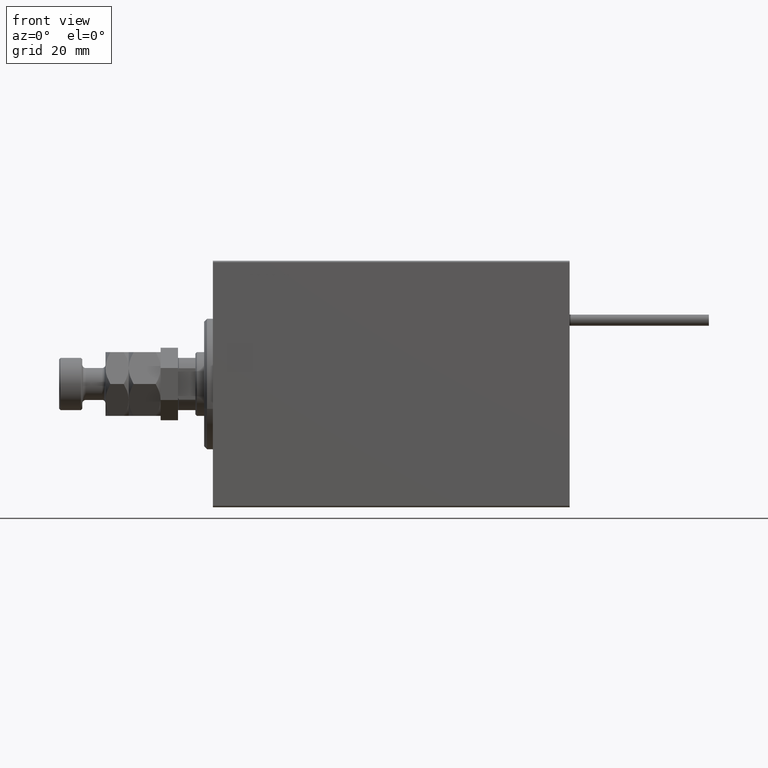
[diagram: clean part render]
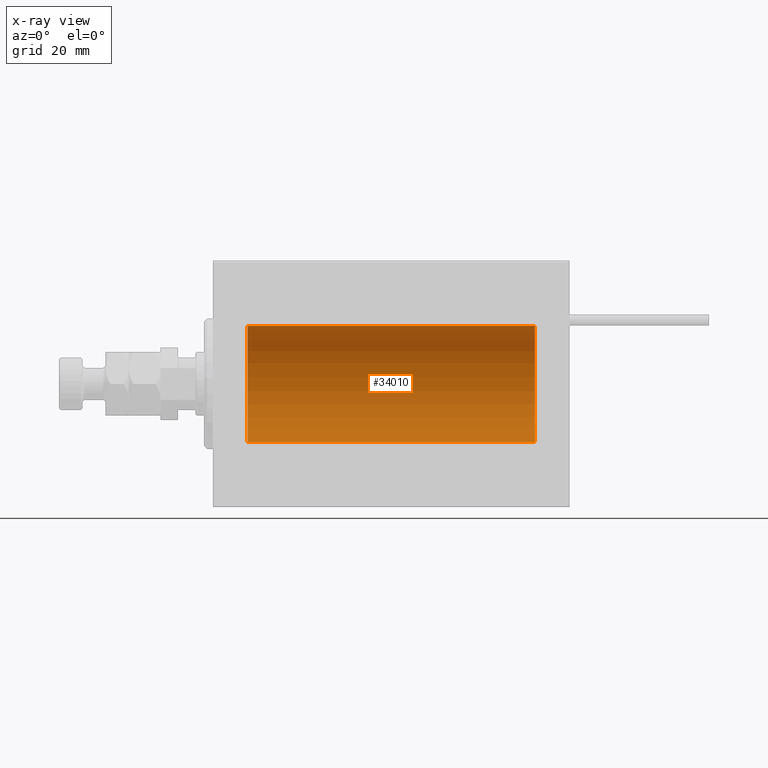
[diagram: x-ray — body ghosted, one internal face saturated and labeled with its STEP entity id]
A machine part, front view, then the same camera in x-ray: the body is ghosted and one INTERNAL B-rep face — a face not visible from any outside direction — is saturated and labeled: STEP entity #34010.
In plain terms, the highlighted cylindrical surface (partial cylindrical patch) has radius 20 mm, axis along (-1, -0, -0).
Its self-contained STEP definition (entity closure, byte-faithful):
#1894 = DIRECTION ( 'NONE',  ( 0.000000000000000000, 0.000000000000000000, 1.000000000000000000 ) ) ;
#2960 = CARTESIAN_POINT ( 'NONE',  ( 111.0000000000000000, 2.449293598294706513E-15, -20.00000000000000000 ) ) ;
#6090 = VECTOR ( 'NONE', #19934, 1000.000000000000000 ) ;
#6785 = VERTEX_POINT ( 'NONE', #29605 ) ;
#10708 = ORIENTED_EDGE ( 'NONE', *, *, #44385, .F. ) ;
#12265 = EDGE_LOOP ( 'NONE', ( #10708, #20958, #28936, #16225 ) ) ;
#14206 = DIRECTION ( 'NONE',  ( -1.000000000000000000, 0.000000000000000000, 0.000000000000000000 ) ) ;
#14876 = AXIS2_PLACEMENT_3D ( 'NONE', #20844, #14206, #1894 ) ;
#15542 = CIRCLE ( 'NONE', #44781, 20.00000000000000000 ) ;
#15652 = DIRECTION ( 'NONE',  ( -1.000000000000000000, -0.000000000000000000, -0.000000000000000000 ) ) ;
#16225 = ORIENTED_EDGE ( 'NONE', *, *, #46028, .T. ) ;
#16730 = DIRECTION ( 'NONE',  ( 0.000000000000000000, 0.000000000000000000, 1.000000000000000000 ) ) ;
#18837 = EDGE_CURVE ( 'NONE', #20327, #37642, #24607, .T. ) ;
#19220 = DIRECTION ( 'NONE',  ( -1.000000000000000000, -0.000000000000000000, -0.000000000000000000 ) ) ;
#19934 = DIRECTION ( 'NONE',  ( -1.000000000000000000, -0.000000000000000000, -0.000000000000000000 ) ) ;
#20327 = VERTEX_POINT ( 'NONE', #36710 ) ;
#20844 = CARTESIAN_POINT ( 'NONE',  ( 11.99999999999999645, 0.000000000000000000, 0.000000000000000000 ) ) ;
#20958 = ORIENTED_EDGE ( 'NONE', *, *, #30038, .F. ) ;
#20960 = CARTESIAN_POINT ( 'NONE',  ( 111.0000000000000000, 0.000000000000000000, 20.00000000000000000 ) ) ;
#23746 = DIRECTION ( 'NONE',  ( 0.000000000000000000, 0.000000000000000000, 1.000000000000000000 ) ) ;
#23894 = LINE ( 'NONE', #2960, #51556 ) ;
#24607 = LINE ( 'NONE', #20960, #6090 ) ;
#28936 = ORIENTED_EDGE ( 'NONE', *, *, #18837, .T. ) ;
#29578 = CARTESIAN_POINT ( 'NONE',  ( 11.99999999999999645, 2.449293598294706513E-15, -20.00000000000000000 ) ) ;
#29605 = CARTESIAN_POINT ( 'NONE',  ( 111.0000000000000000, 2.449293598294706513E-15, -20.00000000000000000 ) ) ;
#30038 = EDGE_CURVE ( 'NONE', #20327, #6785, #15542, .T. ) ;
#30626 = VERTEX_POINT ( 'NONE', #29578 ) ;
#31602 = FACE_OUTER_BOUND ( 'NONE', #12265, .T. ) ;
#34010 = ADVANCED_FACE ( 'NONE', ( #31602 ), #51482, .F. ) ;
#34495 = CARTESIAN_POINT ( 'NONE',  ( 111.0000000000000000, 0.000000000000000000, 0.000000000000000000 ) ) ;
#36344 = CARTESIAN_POINT ( 'NONE',  ( 111.0000000000000000, 0.000000000000000000, 0.000000000000000000 ) ) ;
#36607 = DIRECTION ( 'NONE',  ( -1.000000000000000000, 0.000000000000000000, 0.000000000000000000 ) ) ;
#36710 = CARTESIAN_POINT ( 'NONE',  ( 111.0000000000000000, 0.000000000000000000, 20.00000000000000000 ) ) ;
#37642 = VERTEX_POINT ( 'NONE', #44600 ) ;
#38235 = AXIS2_PLACEMENT_3D ( 'NONE', #34495, #15652, #23746 ) ;
#39944 = CIRCLE ( 'NONE', #14876, 20.00000000000000000 ) ;
#44385 = EDGE_CURVE ( 'NONE', #6785, #30626, #23894, .T. ) ;
#44600 = CARTESIAN_POINT ( 'NONE',  ( 11.99999999999999645, 0.000000000000000000, 20.00000000000000000 ) ) ;
#44781 = AXIS2_PLACEMENT_3D ( 'NONE', #36344, #36607, #16730 ) ;
#46028 = EDGE_CURVE ( 'NONE', #37642, #30626, #39944, .T. ) ;
#51482 = CYLINDRICAL_SURFACE ( 'NONE', #38235, 20.00000000000000000 ) ;
#51556 = VECTOR ( 'NONE', #19220, 1000.000000000000000 ) ;